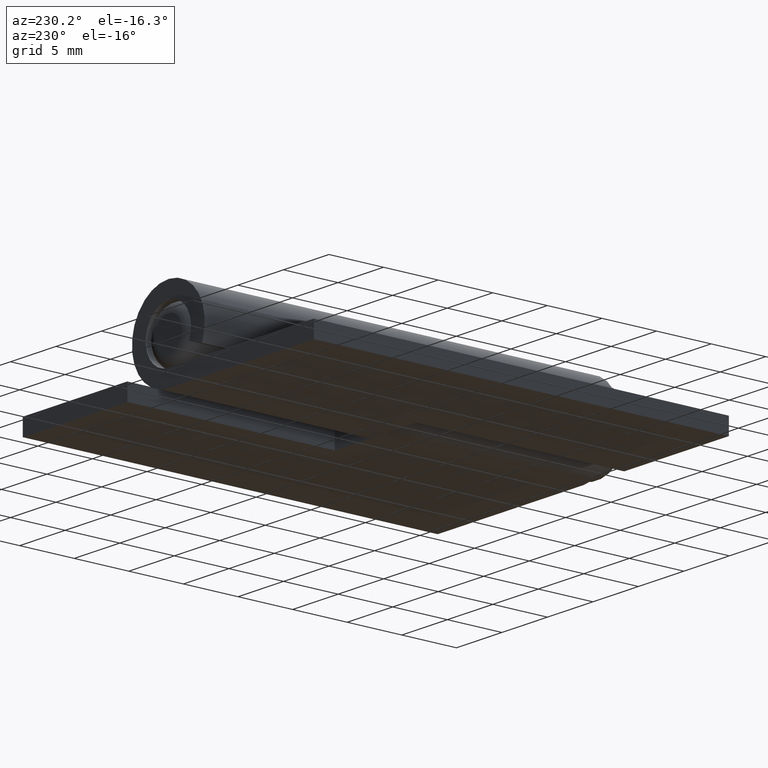
[diagram: clean part render]
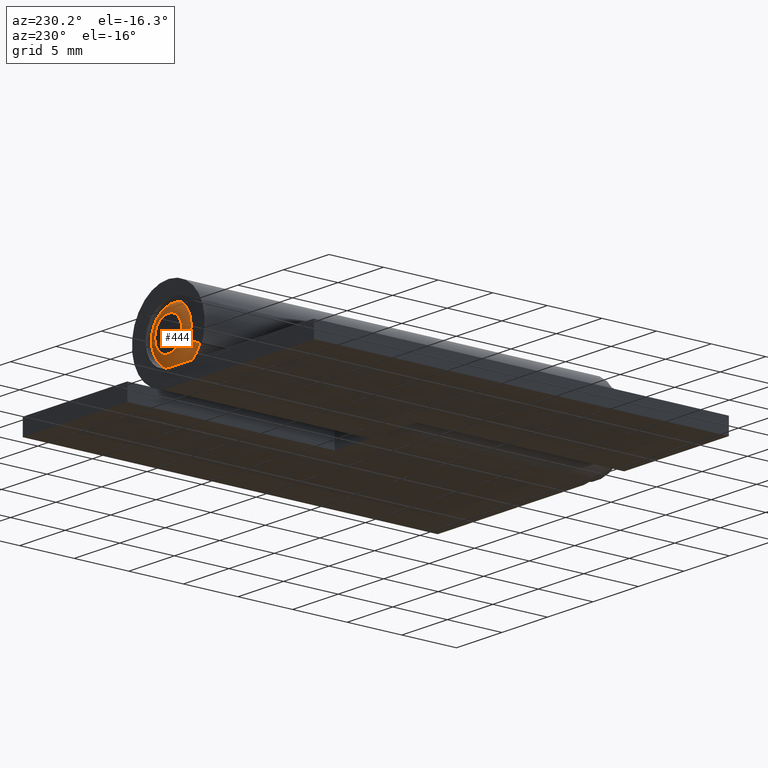
[diagram: same view with one face highlighted and labeled with its STEP entity id]
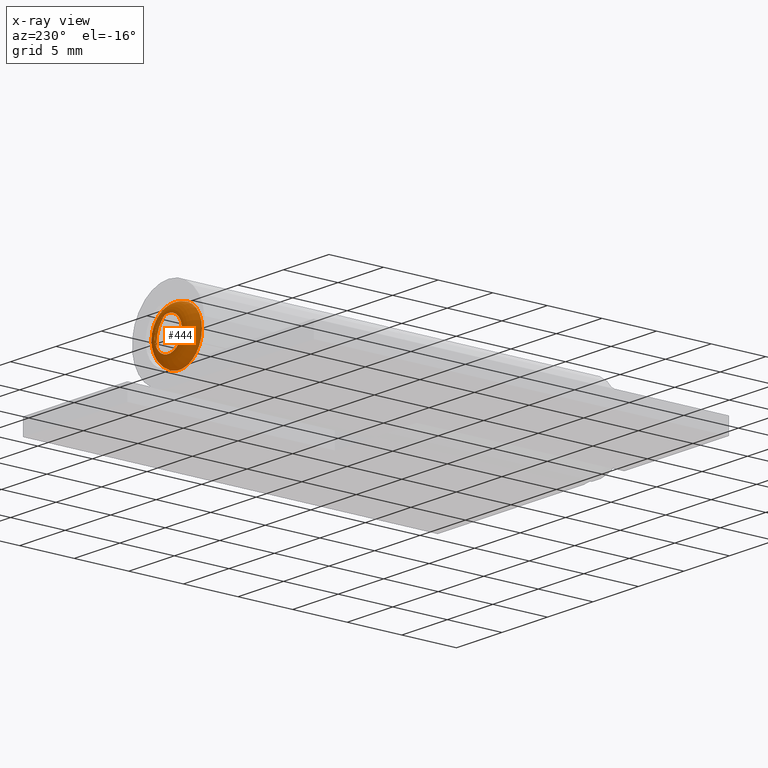
[diagram: x-ray of the same camera — body ghosted, the highlighted face saturated]
A machine part, auxiliary view. The second image highlights one B-rep face of the part: STEP entity #444.
The next image is the same camera in x-ray: the body ghosted, the highlighted face saturated — about 0% of this face is hidden behind the body in this view.
In plain terms, the highlighted toroidal blend (fillet) surface has major radius 1.5 mm and minor (blend) radius 1 mm.
Its self-contained STEP definition (entity closure, byte-faithful):
#19=FACE_BOUND('',#93,.T.);
#25=TOROIDAL_SURFACE('',#485,1.5,1.);
#64=FACE_OUTER_BOUND('',#92,.T.);
#92=EDGE_LOOP('',(#391));
#93=EDGE_LOOP('',(#392));
#194=CIRCLE('',#486,1.5);
#195=CIRCLE('',#487,2.5);
#233=VERTEX_POINT('',#742);
#234=VERTEX_POINT('',#744);
#288=EDGE_CURVE('',#233,#233,#194,.T.);
#289=EDGE_CURVE('',#234,#234,#195,.T.);
#391=ORIENTED_EDGE('',*,*,#288,.T.);
#392=ORIENTED_EDGE('',*,*,#289,.T.);
#444=ADVANCED_FACE('',(#64,#19),#25,.T.);
#485=AXIS2_PLACEMENT_3D('',#741,#603,#604);
#486=AXIS2_PLACEMENT_3D('',#743,#605,#606);
#487=AXIS2_PLACEMENT_3D('',#745,#607,#608);
#603=DIRECTION('center_axis',(2.61228946970625E-16,2.90022391625372E-32,
-1.));
#604=DIRECTION('ref_axis',(-1.,0.,0.));
#605=DIRECTION('center_axis',(2.61228946970625E-16,2.90022391625372E-32,
-1.));
#606=DIRECTION('ref_axis',(-1.,-2.22044604925032E-16,-2.61228946970625E-16));
#607=DIRECTION('center_axis',(-2.61228946970625E-16,-2.90022391625372E-32,
1.));
#608=DIRECTION('ref_axis',(-1.,-2.22044604925032E-16,-2.77555756156289E-16));
#741=CARTESIAN_POINT('Origin',(-5.28816756466193E-15,4.,37.));
#742=CARTESIAN_POINT('',(1.49999999999999,4.,38.));
#743=CARTESIAN_POINT('Origin',(-5.54939651163255E-15,4.,38.));
#744=CARTESIAN_POINT('',(2.49999999999999,4.,37.));
#745=CARTESIAN_POINT('Origin',(-5.28816756466193E-15,4.,37.));